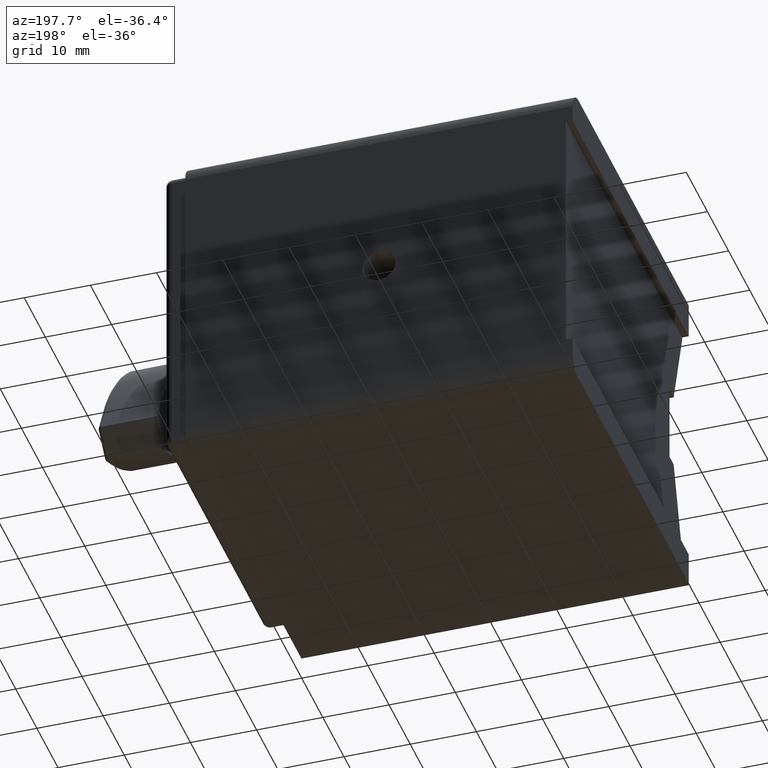
[diagram: clean part render]
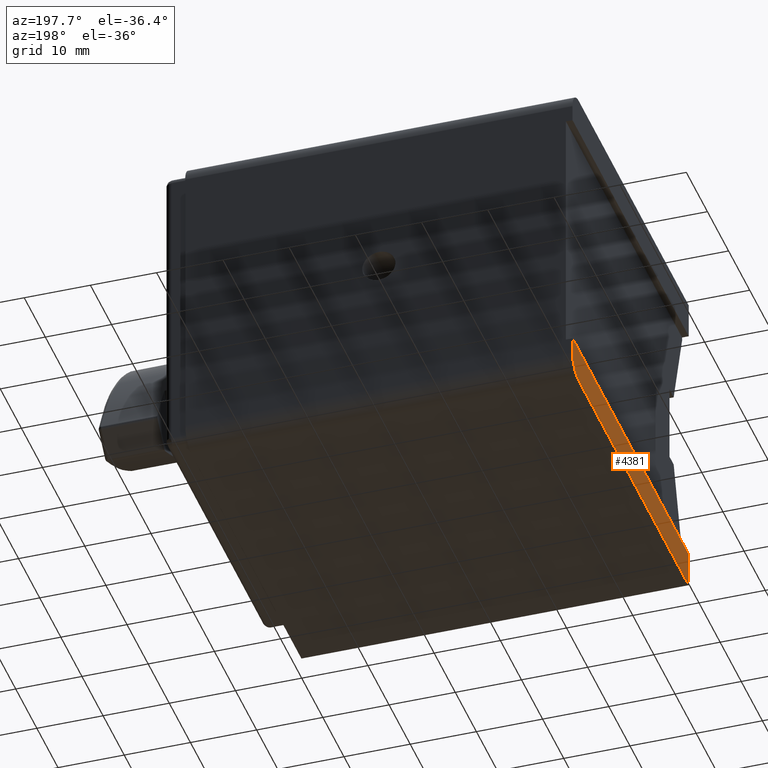
[diagram: same view with one face highlighted and labeled with its STEP entity id]
A machine part, auxiliary view. The second image highlights one B-rep face of the part: STEP entity #4381.
In plain terms, the highlighted planar face has unit normal (1, 0, -0).
Its self-contained STEP definition (entity closure, byte-faithful):
#183 = CARTESIAN_POINT ( 'NONE',  ( -29.25000000000000000, 27.50000000000000000, -19.50000000000001066 ) ) ;
#252 = CARTESIAN_POINT ( 'NONE',  ( -29.25000000000000000, 24.50000000000000000, -25.00000000000000355 ) ) ;
#479 = DIRECTION ( 'NONE',  ( 0.000000000000000000, 0.000000000000000000, -1.000000000000000000 ) ) ;
#646 = EDGE_CURVE ( 'NONE', #3741, #4644, #2923, .T. ) ;
#742 = PLANE ( 'NONE',  #3198 ) ;
#872 = EDGE_CURVE ( 'NONE', #4220, #3561, #4208, .T. ) ;
#880 = CARTESIAN_POINT ( 'NONE',  ( -29.25000000000000000, 27.50000000000000000, -25.00000000000000355 ) ) ;
#1049 = VECTOR ( 'NONE', #3170, 1000.000000000000000 ) ;
#1101 = DIRECTION ( 'NONE',  ( 1.000000000000000000, 0.000000000000000000, -1.387778780781445922E-16 ) ) ;
#1256 = ORIENTED_EDGE ( 'NONE', *, *, #1257, .T. ) ;
#1257 = EDGE_CURVE ( 'NONE', #4644, #3561, #1533, .T. ) ;
#1441 = CARTESIAN_POINT ( 'NONE',  ( -29.25000000000000000, 27.50000000000000000, -22.00000000000001066 ) ) ;
#1498 = DIRECTION ( 'NONE',  ( 0.000000000000000000, -0.000000000000000000, 1.000000000000000000 ) ) ;
#1533 = LINE ( 'NONE', #3103, #3256 ) ;
#1604 = VERTEX_POINT ( 'NONE', #1441 ) ;
#1849 = LINE ( 'NONE', #3444, #3686 ) ;
#2288 = AXIS2_PLACEMENT_3D ( 'NONE', #4667, #3991, #479 ) ;
#2436 = DIRECTION ( 'NONE',  ( 0.000000000000000000, -1.000000000000000000, -0.000000000000000000 ) ) ;
#2923 = LINE ( 'NONE', #880, #4415 ) ;
#2966 = ORIENTED_EDGE ( 'NONE', *, *, #4617, .F. ) ;
#3103 = CARTESIAN_POINT ( 'NONE',  ( -29.25000000000000000, -27.50000000000000000, 0.000000000000000000 ) ) ;
#3170 = DIRECTION ( 'NONE',  ( -0.000000000000000000, -1.000000000000000000, -0.000000000000000000 ) ) ;
#3198 = AXIS2_PLACEMENT_3D ( 'NONE', #4551, #1101, #3379 ) ;
#3256 = VECTOR ( 'NONE', #4934, 1000.000000000000000 ) ;
#3345 = FACE_OUTER_BOUND ( 'NONE', #4497, .T. ) ;
#3379 = DIRECTION ( 'NONE',  ( -1.387778780781445922E-16, 0.000000000000000000, -1.000000000000000000 ) ) ;
#3444 = CARTESIAN_POINT ( 'NONE',  ( -29.25000000000000000, 27.50000000000000000, 0.000000000000000000 ) ) ;
#3561 = VERTEX_POINT ( 'NONE', #3600 ) ;
#3600 = CARTESIAN_POINT ( 'NONE',  ( -29.25000000000000000, -27.50000000000000000, -19.50000000000001066 ) ) ;
#3605 = CIRCLE ( 'NONE', #2288, 2.999999999999999112 ) ;
#3686 = VECTOR ( 'NONE', #1498, 1000.000000000000000 ) ;
#3741 = VERTEX_POINT ( 'NONE', #252 ) ;
#3858 = CARTESIAN_POINT ( 'NONE',  ( -29.25000000000000000, 27.50000000000000000, -19.50000000000001066 ) ) ;
#3957 = ORIENTED_EDGE ( 'NONE', *, *, #4110, .F. ) ;
#3991 = DIRECTION ( 'NONE',  ( 1.000000000000000000, 0.000000000000000000, 0.000000000000000000 ) ) ;
#4110 = EDGE_CURVE ( 'NONE', #3741, #1604, #3605, .T. ) ;
#4142 = ORIENTED_EDGE ( 'NONE', *, *, #646, .T. ) ;
#4208 = LINE ( 'NONE', #3858, #1049 ) ;
#4220 = VERTEX_POINT ( 'NONE', #183 ) ;
#4381 = ADVANCED_FACE ( 'NONE', ( #3345 ), #742, .F. ) ;
#4415 = VECTOR ( 'NONE', #2436, 1000.000000000000000 ) ;
#4497 = EDGE_LOOP ( 'NONE', ( #3957, #4142, #1256, #4758, #2966 ) ) ;
#4551 = CARTESIAN_POINT ( 'NONE',  ( -29.25000000000000000, 27.50000000000000000, -25.00000000000000355 ) ) ;
#4617 = EDGE_CURVE ( 'NONE', #1604, #4220, #1849, .T. ) ;
#4644 = VERTEX_POINT ( 'NONE', #5015 ) ;
#4667 = CARTESIAN_POINT ( 'NONE',  ( -29.25000000000000000, 24.50000000000000000, -22.00000000000001066 ) ) ;
#4758 = ORIENTED_EDGE ( 'NONE', *, *, #872, .F. ) ;
#4934 = DIRECTION ( 'NONE',  ( 0.000000000000000000, -0.000000000000000000, 1.000000000000000000 ) ) ;
#5015 = CARTESIAN_POINT ( 'NONE',  ( -29.25000000000000000, -27.50000000000000000, -25.00000000000000355 ) ) ;